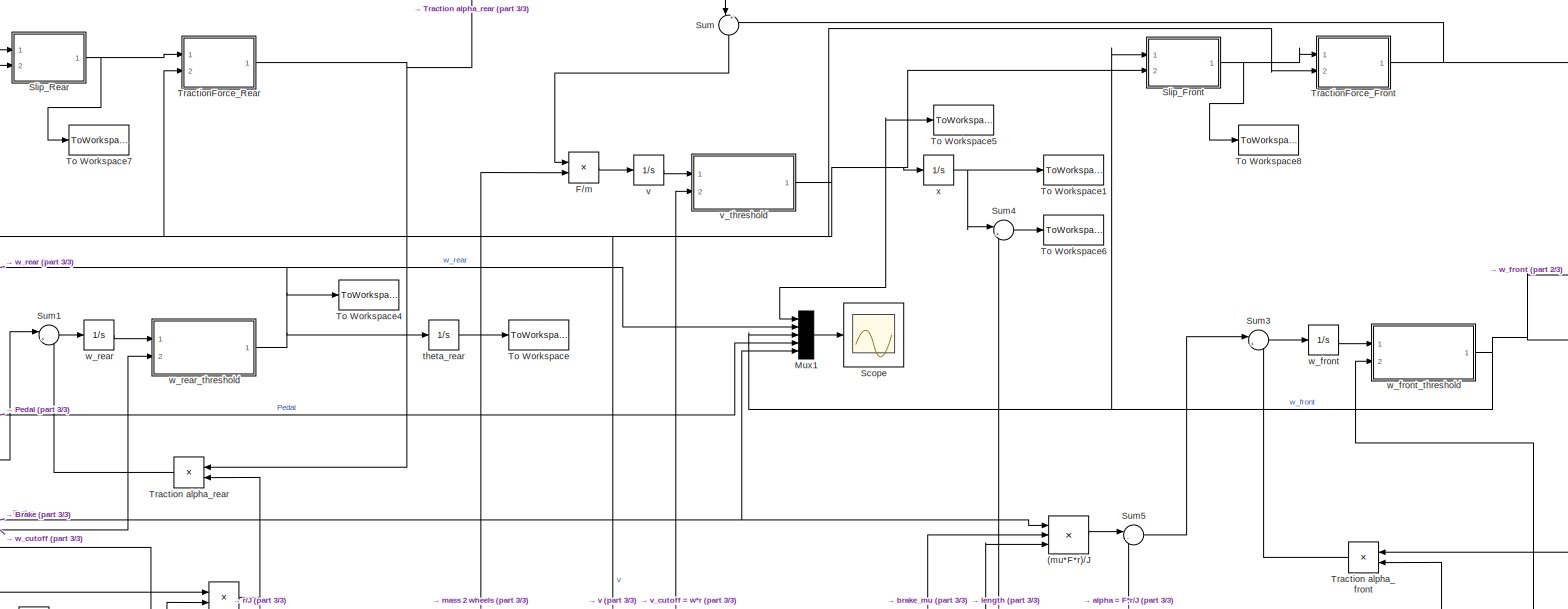
[diagram: root canvas - part 1/3, full width, top band]
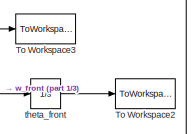
[diagram: root canvas - part 2/3, top right region]
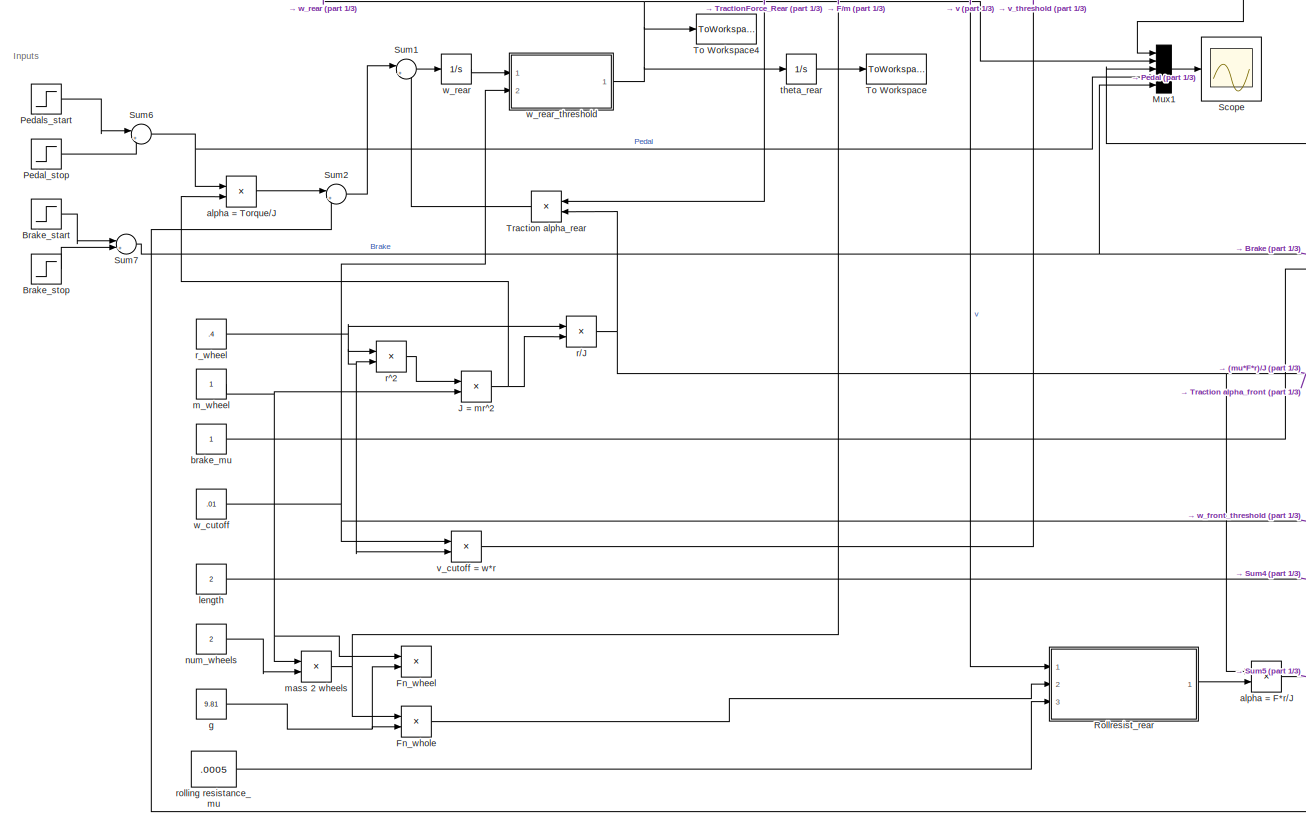
[diagram: root canvas - part 3/3, middle left region]
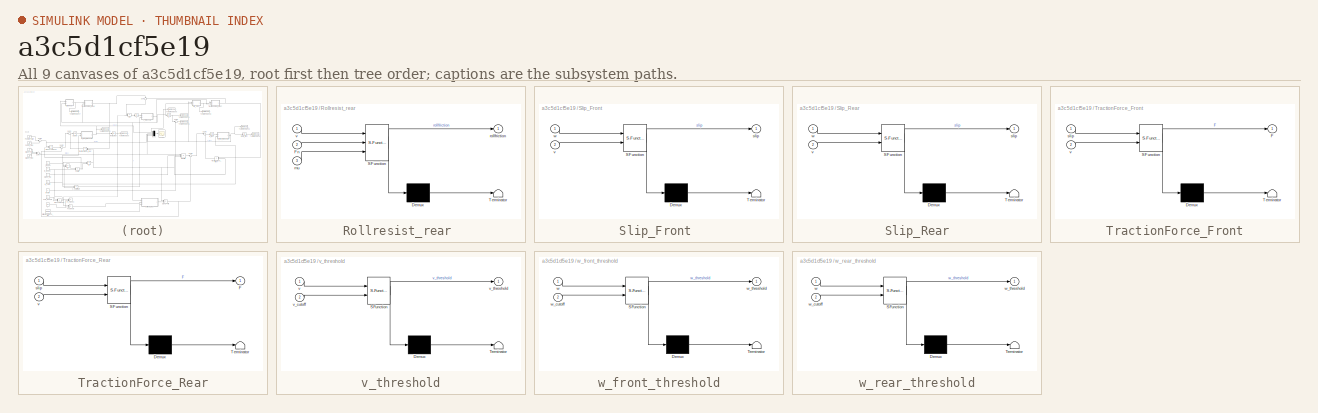
[diagram: thumbnail index - all 9 canvases of the model, root first then tree order]
MODEL slx_a3c5d1cf5e19
KIND model
BLOCK [Product] (mu*F*r)//J
  InputSameDT = off
  Inputs = 3
  OutDataTypeStr = Inherit: Inherit via internal rule
  Ports = [3, 1]
  RndMeth = Floor
  SaturateOnIntegerOverflow = off
BLOCK [Step] Brake_start
  After = .5
  SampleTime = 0
  Time = 10
BLOCK [Step] Brake_stop 
  After = .5
  SampleTime = 0
  Time = 15
BLOCK [Product] F//m
  InputSameDT = off
  Inputs = */
  OutDataTypeStr = Inherit: Inherit via internal rule
  Ports = [2, 1]
  RndMeth = Floor
  SaturateOnIntegerOverflow = off
BLOCK [Product] Fn_wheel 
  InputSameDT = off
  OutDataTypeStr = Inherit: Inherit via internal rule
  Ports = [2, 1]
  RndMeth = Floor
  SaturateOnIntegerOverflow = off
BLOCK [Product] Fn_whole
  InputSameDT = off
  OutDataTypeStr = Inherit: Inherit via internal rule
  Ports = [2, 1]
  RndMeth = Floor
  SaturateOnIntegerOverflow = off
BLOCK [Product] J = mr^2
  InputSameDT = off
  OutDataTypeStr = Inherit: Inherit via internal rule
  Ports = [2, 1]
  RndMeth = Floor
  SaturateOnIntegerOverflow = off
BLOCK [Mux] Mux1
  DisplayOption = bar
  Inputs = 5
  Ports = [5, 1]
BLOCK [Step] Pedal_stop
  SampleTime = 0
  Time = 3
BLOCK [Step] Pedals_start
  SampleTime = 0
  Time = 2
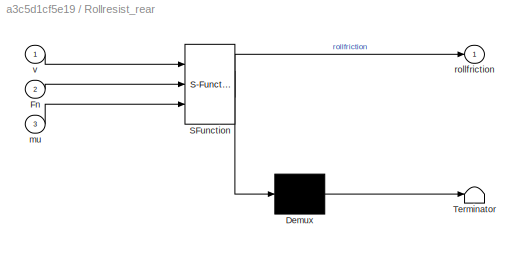
BLOCK [SubSystem] Rollresist_rear 
  ErrorFcn = Stateflow.Translate.translate
  PermitHierarchicalResolution = ExplicitOnly
  Ports = [3, 1]
  RequestExecContextInheritance = off
  SFBlockType = MATLAB Function
  TreatAsAtomicUnit = on
BLOCK [Demux] Rollresist_rear / Demux 
  Outputs = 1
  Ports = [1, 1]
BLOCK [S-Function] Rollresist_rear / SFunction 
  EnableBusSupport = on
  FunctionName = sf_sfun
  PortCounts = [3 2]
  Ports = [3, 2]
  Tag = Stateflow S-Function sim_tire_model_new 8
BLOCK [Terminator] Rollresist_rear / Terminator 
BLOCK [Inport] Rollresist_rear /Fn
  IconDisplay = Port number
  Port = 2
BLOCK [Inport] Rollresist_rear /mu
  IconDisplay = Port number
  Port = 3
BLOCK [Outport] Rollresist_rear /rollfriction
  IconDisplay = Port number
BLOCK [Inport] Rollresist_rear /v
  IconDisplay = Port number
BLOCK [Scope] Scope
  Floating = off
  LegendLocations = 0.90485     0.89244    0.048408    0.079321
  NumInputPorts = 1
  Ports = [1]
  ShowLegends = on
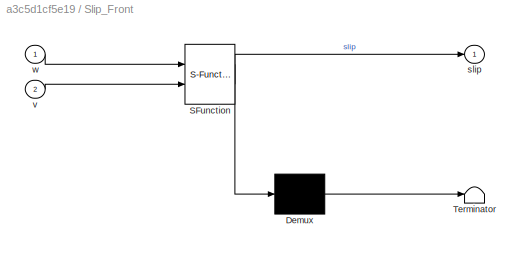
BLOCK [SubSystem] Slip_Front 
  ErrorFcn = Stateflow.Translate.translate
  PermitHierarchicalResolution = ExplicitOnly
  Ports = [2, 1]
  RequestExecContextInheritance = off
  SFBlockType = MATLAB Function
  TreatAsAtomicUnit = on
BLOCK [Demux] Slip_Front / Demux 
  Outputs = 1
  Ports = [1, 1]
BLOCK [S-Function] Slip_Front / SFunction 
  EnableBusSupport = on
  FunctionName = sf_sfun
  PortCounts = [2 2]
  Ports = [2, 2]
  Tag = Stateflow S-Function sim_tire_model_new 3
BLOCK [Terminator] Slip_Front / Terminator 
BLOCK [Outport] Slip_Front /slip
  IconDisplay = Port number
BLOCK [Inport] Slip_Front /v
  IconDisplay = Port number
  Port = 2
BLOCK [Inport] Slip_Front /w
  IconDisplay = Port number
BLOCK [SubSystem] Slip_Rear
  ErrorFcn = Stateflow.Translate.translate
  PermitHierarchicalResolution = ExplicitOnly
  Ports = [2, 1]
  RequestExecContextInheritance = off
  SFBlockType = MATLAB Function
  TreatAsAtomicUnit = on
BLOCK [Demux] Slip_Rear/ Demux 
  Outputs = 1
  Ports = [1, 1]
BLOCK [S-Function] Slip_Rear/ SFunction 
  EnableBusSupport = on
  FunctionName = sf_sfun
  PortCounts = [2 2]
  Ports = [2, 2]
  Tag = Stateflow S-Function sim_tire_model_new 2
BLOCK [Terminator] Slip_Rear/ Terminator 
BLOCK [Outport] Slip_Rear/slip
  IconDisplay = Port number
BLOCK [Inport] Slip_Rear/v
  IconDisplay = Port number
  Port = 2
BLOCK [Inport] Slip_Rear/w
  IconDisplay = Port number
BLOCK [Sum] Sum
  IconShape = round
  InputSameDT = off
  Inputs = |++
  OutDataTypeStr = Inherit: Inherit via internal rule
  Ports = [2, 1]
  SaturateOnIntegerOverflow = off
BLOCK [Sum] Sum1
  IconShape = round
  InputSameDT = off
  Inputs = |+-
  OutDataTypeStr = Inherit: Inherit via internal rule
  Ports = [2, 1]
  SaturateOnIntegerOverflow = off
BLOCK [Sum] Sum2
  IconShape = round
  InputSameDT = off
  Inputs = |+-
  OutDataTypeStr = Inherit: Inherit via internal rule
  Ports = [2, 1]
  SaturateOnIntegerOverflow = off
BLOCK [Sum] Sum3
  IconShape = round
  InputSameDT = off
  Inputs = |+-
  OutDataTypeStr = Inherit: Inherit via internal rule
  Ports = [2, 1]
  SaturateOnIntegerOverflow = off
BLOCK [Sum] Sum4
  IconShape = round
  InputSameDT = off
  Inputs = |++
  OutDataTypeStr = Inherit: Inherit via internal rule
  Ports = [2, 1]
  SaturateOnIntegerOverflow = off
BLOCK [Sum] Sum5
  IconShape = round
  InputSameDT = off
  Inputs = |--
  OutDataTypeStr = Inherit: Inherit via internal rule
  Ports = [2, 1]
  SaturateOnIntegerOverflow = off
BLOCK [Sum] Sum6
  IconShape = round
  InputSameDT = off
  Inputs = |+-
  OutDataTypeStr = Inherit: Inherit via internal rule
  Ports = [2, 1]
  SaturateOnIntegerOverflow = off
BLOCK [Sum] Sum7
  IconShape = round
  InputSameDT = off
  Inputs = |+-
  OutDataTypeStr = Inherit: Inherit via internal rule
  Ports = [2, 1]
  SaturateOnIntegerOverflow = off
BLOCK [ToWorkspace] To Workspace
  Decimation = 2
  FixptAsFi = on
  MaxDataPoints = inf
  Ports = [1]
  SampleTime = -1
  Save2DSignal = 2-D array (concatenate along first dimension)
  VariableName = theta_rear
BLOCK [ToWorkspace] To Workspace1
  Decimation = 2
  FixptAsFi = on
  MaxDataPoints = inf
  Ports = [1]
  SampleTime = -1
  Save2DSignal = 2-D array (concatenate along first dimension)
  VariableName = x_rear
BLOCK [ToWorkspace] To Workspace2
  Decimation = 2
  FixptAsFi = on
  MaxDataPoints = inf
  Ports = [1]
  SampleTime = -1
  Save2DSignal = 2-D array (concatenate along first dimension)
  VariableName = theta_front
BLOCK [ToWorkspace] To Workspace3
  Decimation = 2
  FixptAsFi = on
  MaxDataPoints = inf
  Ports = [1]
  SampleTime = -1
  Save2DSignal = 2-D array (concatenate along first dimension)
  VariableName = w_front
BLOCK [ToWorkspace] To Workspace4
  Decimation = 2
  FixptAsFi = on
  MaxDataPoints = inf
  Ports = [1]
  SampleTime = -1
  Save2DSignal = 2-D array (concatenate along first dimension)
  VariableName = w_rear
BLOCK [ToWorkspace] To Workspace5
  Decimation = 2
  FixptAsFi = on
  MaxDataPoints = inf
  Ports = [1]
  SampleTime = -1
  Save2DSignal = 2-D array (concatenate along first dimension)
  VariableName = v
BLOCK [ToWorkspace] To Workspace6
  Decimation = 2
  FixptAsFi = on
  MaxDataPoints = inf
  Ports = [1]
  SampleTime = -1
  Save2DSignal = 2-D array (concatenate along first dimension)
  VariableName = x_front
BLOCK [ToWorkspace] To Workspace7
  Decimation = 2
  FixptAsFi = on
  MaxDataPoints = inf
  Ports = [1]
  SampleTime = -1
  Save2DSignal = 2-D array (concatenate along first dimension)
  VariableName = slip_rear
BLOCK [ToWorkspace] To Workspace8
  Decimation = 2
  FixptAsFi = on
  MaxDataPoints = inf
  Ports = [1]
  SampleTime = -1
  Save2DSignal = 2-D array (concatenate along first dimension)
  VariableName = slip_front
BLOCK [Product] Traction alpha_front
  InputSameDT = off
  OutDataTypeStr = Inherit: Inherit via internal rule
  Ports = [2, 1]
  RndMeth = Floor
  SaturateOnIntegerOverflow = off
BLOCK [Product] Traction alpha_rear 
  InputSameDT = off
  OutDataTypeStr = Inherit: Inherit via internal rule
  Ports = [2, 1]
  RndMeth = Floor
  SaturateOnIntegerOverflow = off
BLOCK [SubSystem] TractionForce_Front
  ErrorFcn = Stateflow.Translate.translate
  PermitHierarchicalResolution = ExplicitOnly
  Ports = [2, 1]
  RequestExecContextInheritance = off
  SFBlockType = MATLAB Function
  TreatAsAtomicUnit = on
BLOCK [Demux] TractionForce_Front/ Demux 
  Outputs = 1
  Ports = [1, 1]
BLOCK [S-Function] TractionForce_Front/ SFunction 
  EnableBusSupport = on
  FunctionName = sf_sfun
  PortCounts = [2 2]
  Ports = [2, 2]
  Tag = Stateflow S-Function sim_tire_model_new 4
BLOCK [Terminator] TractionForce_Front/ Terminator 
BLOCK [Outport] TractionForce_Front/F
  IconDisplay = Port number
BLOCK [Inport] TractionForce_Front/slip
  IconDisplay = Port number
BLOCK [Inport] TractionForce_Front/v
  IconDisplay = Port number
  Port = 2
BLOCK [SubSystem] TractionForce_Rear
  ErrorFcn = Stateflow.Translate.translate
  PermitHierarchicalResolution = ExplicitOnly
  Ports = [2, 1]
  RequestExecContextInheritance = off
  SFBlockType = MATLAB Function
  TreatAsAtomicUnit = on
BLOCK [Demux] TractionForce_Rear/ Demux 
  Outputs = 1
  Ports = [1, 1]
BLOCK [S-Function] TractionForce_Rear/ SFunction 
  EnableBusSupport = on
  FunctionName = sf_sfun
  PortCounts = [2 2]
  Ports = [2, 2]
  Tag = Stateflow S-Function sim_tire_model_new 1
BLOCK [Terminator] TractionForce_Rear/ Terminator 
BLOCK [Outport] TractionForce_Rear/F
  IconDisplay = Port number
BLOCK [Inport] TractionForce_Rear/slip
  IconDisplay = Port number
BLOCK [Inport] TractionForce_Rear/v
  IconDisplay = Port number
  Port = 2
BLOCK [Product] alpha = F*r//J
  InputSameDT = off
  OutDataTypeStr = Inherit: Inherit via internal rule
  Ports = [2, 1]
  RndMeth = Floor
  SaturateOnIntegerOverflow = off
BLOCK [Product] alpha = Torque//J
  InputSameDT = off
  Inputs = */
  OutDataTypeStr = Inherit: Inherit via internal rule
  Ports = [2, 1]
  RndMeth = Floor
  SaturateOnIntegerOverflow = off
BLOCK [Constant] brake_mu
BLOCK [Constant] g
  Value = 9.81
BLOCK [Constant] length
  Value = 2
BLOCK [Constant] m_wheel
BLOCK [Product] mass 2 wheels
  InputSameDT = off
  OutDataTypeStr = Inherit: Inherit via internal rule
  Ports = [2, 1]
  RndMeth = Floor
  SaturateOnIntegerOverflow = off
BLOCK [Constant] num_wheels
  Value = 2
BLOCK [Product] r//J
  InputSameDT = off
  Inputs = */
  OutDataTypeStr = Inherit: Inherit via internal rule
  Ports = [2, 1]
  RndMeth = Floor
  SaturateOnIntegerOverflow = off
BLOCK [Product] r^2 
  InputSameDT = off
  OutDataTypeStr = Inherit: Inherit via internal rule
  Ports = [2, 1]
  RndMeth = Floor
  SaturateOnIntegerOverflow = off
BLOCK [Constant] r_wheel
  Value = .4
BLOCK [Constant] rolling resistance_mu
  Value = .0005
BLOCK [Integrator] theta_front 
  Ports = [1, 1]
BLOCK [Integrator] theta_rear 
  Ports = [1, 1]
BLOCK [Integrator] v 
  Ports = [1, 1]
BLOCK [Product] v_cutoff = w*r
  InputSameDT = off
  OutDataTypeStr = Inherit: Inherit via internal rule
  Ports = [2, 1]
  RndMeth = Floor
  SaturateOnIntegerOverflow = off
BLOCK [SubSystem] v_threshold
  ErrorFcn = Stateflow.Translate.translate
  PermitHierarchicalResolution = ExplicitOnly
  Ports = [2, 1]
  RequestExecContextInheritance = off
  SFBlockType = MATLAB Function
  TreatAsAtomicUnit = on
BLOCK [Demux] v_threshold/ Demux 
  Outputs = 1
  Ports = [1, 1]
BLOCK [S-Function] v_threshold/ SFunction 
  EnableBusSupport = on
  FunctionName = sf_sfun
  PortCounts = [2 2]
  Ports = [2, 2]
  Tag = Stateflow S-Function sim_tire_model_new 7
BLOCK [Terminator] v_threshold/ Terminator 
BLOCK [Inport] v_threshold/v
  IconDisplay = Port number
BLOCK [Inport] v_threshold/v_cutoff
  IconDisplay = Port number
  Port = 2
BLOCK [Outport] v_threshold/v_threshold
  IconDisplay = Port number
BLOCK [Constant] w_cutoff
  Value = .01
BLOCK [Integrator] w_front 
  Ports = [1, 1]
BLOCK [SubSystem] w_front_threshold
  ErrorFcn = Stateflow.Translate.translate
  PermitHierarchicalResolution = ExplicitOnly
  Ports = [2, 1]
  RequestExecContextInheritance = off
  SFBlockType = MATLAB Function
  TreatAsAtomicUnit = on
BLOCK [Demux] w_front_threshold/ Demux 
  Outputs = 1
  Ports = [1, 1]
BLOCK [S-Function] w_front_threshold/ SFunction 
  EnableBusSupport = on
  FunctionName = sf_sfun
  PortCounts = [2 2]
  Ports = [2, 2]
  Tag = Stateflow S-Function sim_tire_model_new 6
BLOCK [Terminator] w_front_threshold/ Terminator 
BLOCK [Inport] w_front_threshold/w
  IconDisplay = Port number
BLOCK [Inport] w_front_threshold/w_cutoff
  IconDisplay = Port number
  Port = 2
BLOCK [Outport] w_front_threshold/w_threshold
  IconDisplay = Port number
BLOCK [Integrator] w_rear
  Ports = [1, 1]
BLOCK [SubSystem] w_rear_threshold
  ErrorFcn = Stateflow.Translate.translate
  PermitHierarchicalResolution = ExplicitOnly
  Ports = [2, 1]
  RequestExecContextInheritance = off
  SFBlockType = MATLAB Function
  TreatAsAtomicUnit = on
BLOCK [Demux] w_rear_threshold/ Demux 
  Outputs = 1
  Ports = [1, 1]
BLOCK [S-Function] w_rear_threshold/ SFunction 
  EnableBusSupport = on
  FunctionName = sf_sfun
  PortCounts = [2 2]
  Ports = [2, 2]
  Tag = Stateflow S-Function sim_tire_model_new 5
BLOCK [Terminator] w_rear_threshold/ Terminator 
BLOCK [Inport] w_rear_threshold/w
  IconDisplay = Port number
BLOCK [Inport] w_rear_threshold/w_cutoff
  IconDisplay = Port number
  Port = 2
BLOCK [Outport] w_rear_threshold/w_threshold
  IconDisplay = Port number
BLOCK [Integrator] x
  Ports = [1, 1]
ANNOTATION (root): Inputs
LINE (mu*F*r)//J:1 -> Sum5:1
LINE Brake_start:1 -> Sum7:1
LINE Brake_stop :1 -> Sum7:2
LINE F//m:1 -> v :1
LINE Fn_whole:1 -> Rollresist_rear :2
NET J = mr^2:1 -> alpha = Torque//J:2, r//J:2
LINE Mux1:1 -> Scope:1
LINE Pedal_stop:1 -> Sum6:2
LINE Pedals_start:1 -> Sum6:1
LINE Rollresist_rear :1 -> alpha = F*r//J:2
NET Slip_Front :1 -> To Workspace8:1, TractionForce_Front:1
NET Slip_Rear:1 -> To Workspace7:1, TractionForce_Rear:1
LINE Sum1:1 -> w_rear:1
LINE Sum2:1 -> Sum1:1
LINE Sum3:1 -> w_front :1
LINE Sum4:1 -> To Workspace6:1
LINE Sum5:1 -> Sum3:1
NET Sum6:1 -> Mux1:4, alpha = Torque//J:1
NET Sum7:1 -> (mu*F*r)//J:1, Mux1:5
LINE Sum:1 -> F//m:1
LINE Traction alpha_front:1 -> Sum3:2
LINE Traction alpha_rear :1 -> Sum1:2
NET TractionForce_Front:1 -> Sum:2, Traction alpha_front:1
NET TractionForce_Rear:1 -> Sum:1, Traction alpha_rear :1
NET alpha = F*r//J:1 -> Sum2:2, Sum5:2
LINE alpha = Torque//J:1 -> Sum2:1
LINE brake_mu:1 -> (mu*F*r)//J:2
NET g:1 -> Fn_wheel :2, Fn_whole:2
LINE length:1 -> Sum4:2
NET m_wheel:1 -> Fn_wheel :1, J = mr^2:2, mass 2 wheels:1
NET mass 2 wheels:1 -> F//m:2, Fn_whole:1
LINE num_wheels:1 -> mass 2 wheels:2
NET r//J:1 -> (mu*F*r)//J:3, Traction alpha_front:2, Traction alpha_rear :2, alpha = F*r//J:1
LINE r^2 :1 -> J = mr^2:1
NET r_wheel:1 -> r//J:1, r^2 :1, r^2 :2, v_cutoff = w*r:2
LINE rolling resistance_mu:1 -> Rollresist_rear :3
LINE theta_front :1 -> To Workspace2:1
LINE theta_rear :1 -> To Workspace:1
LINE v :1 -> v_threshold:1
LINE v_cutoff = w*r:1 -> v_threshold:2
NET v_threshold:1 -> Mux1:1, Rollresist_rear :1, Slip_Front :2, Slip_Rear:2, To Workspace5:1, TractionForce_Front:2, TractionForce_Rear:2, x:1
NET w_cutoff:1 -> v_cutoff = w*r:1, w_front_threshold:2, w_rear_threshold:2
LINE w_front :1 -> w_front_threshold:1
NET w_front_threshold:1 -> Mux1:3, Slip_Front :1, To Workspace3:1, theta_front :1
LINE w_rear:1 -> w_rear_threshold:1
NET w_rear_threshold:1 -> Mux1:2, Slip_Rear:1, To Workspace4:1, theta_rear :1
NET x:1 -> Sum4:1, To Workspace1:1
note: NET lines group one-source signal fan-out (src -> all destinations, sorted); 1:1 wires keep LINE
CHART TractionForce_Rear states=1 transitions=1
  STATE_LABEL 'eML_blk_kernel()'
  STATE_LABEL 'SCRIPT:\nfunction F = f(slip, v)\n\nv_thresh = .5; % m/s\nFn       = 1; % N\n\nif (v < v_thresh)\n    F = sign(slip)*1;\nelse\n\n    mu = sin(2*atan((5*slip)-1*((3*slip)-atan(3*slip))));\n\n    % Normalizes the force output so that mu is a quadratic function\n\n    % of speed.\n\n    % Data from this paper\n\n    % http://soliton.ae.gatech.edu/labs/dcsl/papers/cdc99a.pdf\n\n    speeds = [v_thresh, 8.94, 17.88, 26.82]...<+159ch>'
CHART Slip_Rear states=1 transitions=1
  STATE_LABEL 'eML_blk_kernel()'
  STATE_LABEL 'SCRIPT:\nfunction slip = f(w,v)\nr = .4;\n\nif w*r == v\n    slip = 0;\nelse\n    slip = (w*r - v) / max(w*r, v);\nend\n\nslip = floor(slip*1000)/1000;\n\nend'
CHART Slip_Front
 states=1 transitions=1
  STATE_LABEL 'eML_blk_kernel()'
  STATE_LABEL 'SCRIPT:\nfunction slip = f(w,v)\nr = .4;\n\nif w*r == v\n    slip = 0;\nelse\n    slip = (w*r - v) / max(w*r, v);\nend\n\nslip = floor(slip*1000)/1000;\n\nend'
CHART TractionForce_Front states=1 transitions=1
  STATE_LABEL 'eML_blk_kernel()'
  STATE_LABEL 'SCRIPT:\nfunction F = f(slip, v)\n\nv_thresh = .5; % m/s\nFn       = 1; % N\n\nif (v < v_thresh)\n    F = sign(slip)*1;\nelse\n\n    mu = sin(2*atan((5*slip)-1*((3*slip)-atan(3*slip))));\n\n    % Normalizes the force output so that mu is a quadratic function\n\n    % of speed.\n\n    % Data from this paper\n\n    % http://soliton.ae.gatech.edu/labs/dcsl/papers/cdc99a.pdf\n\n    speeds = [v_thresh, 8.94, 17.88, 26.82]...<+159ch>'
CHART w_rear_threshold states=1 transitions=1
  STATE_LABEL 'eML_blk_kernel()'
  STATE_LABEL 'SCRIPT:\nfunction w_threshold = f(w, w_cutoff)\n\nif w < w_cutoff\n    w_threshold = 0;\nelse\n    w_threshold = w;\nend\nend'
CHART w_front_threshold states=1 transitions=1
  STATE_LABEL 'eML_blk_kernel()'
  STATE_LABEL 'SCRIPT:\nfunction w_threshold = f(w, w_cutoff)\n\nif w < w_cutoff\n    w_threshold = 0;\nelse\n    w_threshold = w;\nend\nend'
CHART v_threshold states=1 transitions=1
  STATE_LABEL 'eML_blk_kernel()'
  STATE_LABEL 'SCRIPT:\nfunction v_threshold = f(v, v_cutoff)\n\nif v < v_cutoff\n    v_threshold = 0;\nelse\n    v_threshold = v;\nend'
CHART Rollresist_rear
 states=1 transitions=1
  STATE_LABEL 'eML_blk_kernel()'
  STATE_LABEL 'SCRIPT:\nfunction rollfriction = rolling_f(v, Fn, mu)\n% Constant resistance coefficient model\n% http://www.mathworks.com/help/physmod/sdl/ref/rollingresistance.html\n\nVthresh = .125; % m/s\nrollfriction = Fn*mu*tanh(4*v/Vthresh);\nend'
